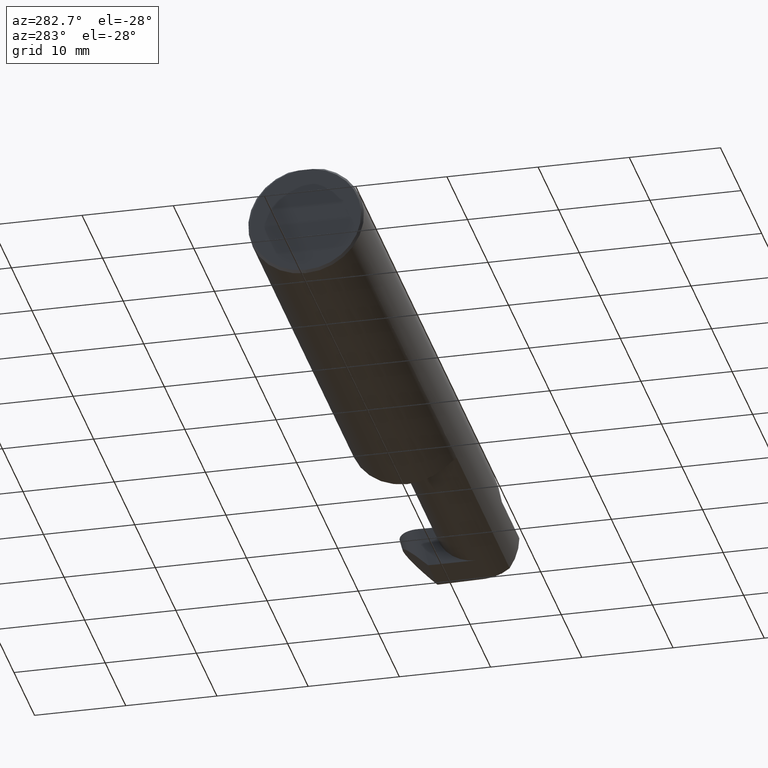
[diagram: clean part render]
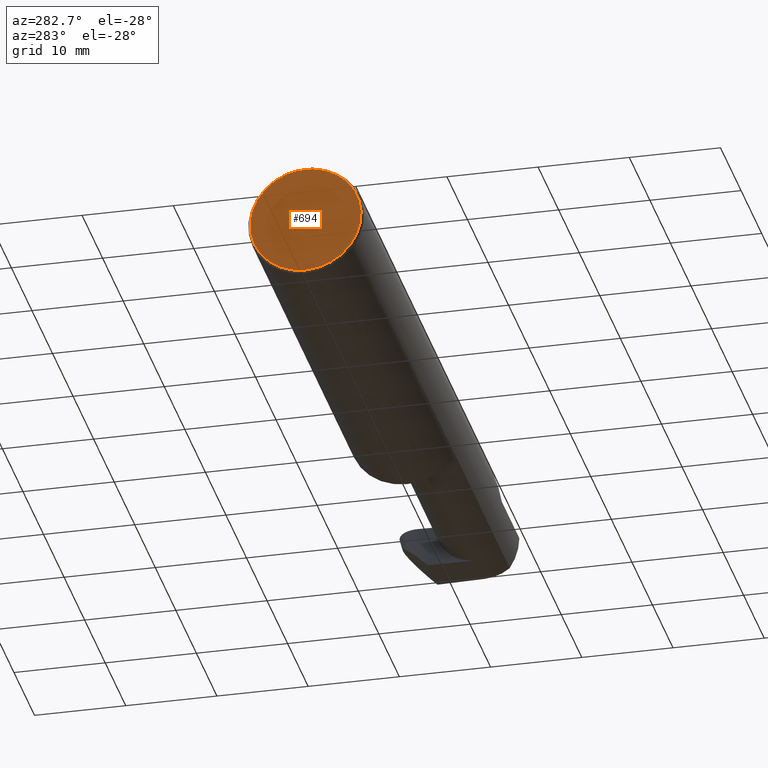
[diagram: same view with one face highlighted and labeled with its STEP entity id]
A machine part, auxiliary view. The second image highlights one B-rep face of the part: STEP entity #694.
In plain terms, the highlighted planar face has unit normal (1, 0, 0).
Its self-contained STEP definition (entity closure, byte-faithful):
#41 = AXIS2_PLACEMENT_3D ( 'NONE', #51, #54, #656 ) ;
#46 = ORIENTED_EDGE ( 'NONE', *, *, #410, .T. ) ;
#51 = CARTESIAN_POINT ( 'NONE',  ( 0.000000000000000000, 0.000000000000000000, 0.000000000000000000 ) ) ;
#54 = DIRECTION ( 'NONE',  ( -1.000000000000000000, -0.000000000000000000, -0.000000000000000000 ) ) ;
#62 = CIRCLE ( 'NONE', #41, 0.2398500000000001742 ) ;
#77 = AXIS2_PLACEMENT_3D ( 'NONE', #175, #648, #554 ) ;
#101 = ORIENTED_EDGE ( 'NONE', *, *, #469, .T. ) ;
#117 = CARTESIAN_POINT ( 'NONE',  ( 0.000000000000000000, 0.2498499999999998500, 0.2378499999999998671 ) ) ;
#171 = PLANE ( 'NONE',  #77 ) ;
#175 = CARTESIAN_POINT ( 'NONE',  ( 0.000000000000000000, 0.000000000000000000, 0.000000000000000000 ) ) ;
#190 = DIRECTION ( 'NONE',  ( -1.000000000000000000, -0.000000000000000000, -0.000000000000000000 ) ) ;
#197 = DIRECTION ( 'NONE',  ( 0.000000000000000000, 0.000000000000000000, -1.000000000000000000 ) ) ;
#232 = CARTESIAN_POINT ( 'NONE',  ( 0.000000000000000000, -0.03090954545120560767, 0.2378499999999998671 ) ) ;
#286 = AXIS2_PLACEMENT_3D ( 'NONE', #578, #190, #197 ) ;
#345 = EDGE_CURVE ( 'NONE', #650, #378, #609, .T. ) ;
#376 = CARTESIAN_POINT ( 'NONE',  ( 0.000000000000000000, 0.000000000000000000, -0.2398500000000001742 ) ) ;
#377 = DIRECTION ( 'NONE',  ( -0.000000000000000000, 1.000000000000000000, -0.000000000000000000 ) ) ;
#378 = VERTEX_POINT ( 'NONE', #429 ) ;
#399 = EDGE_LOOP ( 'NONE', ( #684, #46, #101 ) ) ;
#410 = EDGE_CURVE ( 'NONE', #378, #658, #62, .T. ) ;
#429 = CARTESIAN_POINT ( 'NONE',  ( 0.000000000000000000, 0.03090954545120574992, 0.2378499999999998671 ) ) ;
#469 = EDGE_CURVE ( 'NONE', #658, #650, #479, .T. ) ;
#479 = CIRCLE ( 'NONE', #286, 0.2398500000000001742 ) ;
#554 = DIRECTION ( 'NONE',  ( 0.000000000000000000, 0.000000000000000000, -1.000000000000000000 ) ) ;
#558 = VECTOR ( 'NONE', #377, 39.37007874015748143 ) ;
#578 = CARTESIAN_POINT ( 'NONE',  ( 0.000000000000000000, 0.000000000000000000, 0.000000000000000000 ) ) ;
#609 = LINE ( 'NONE', #117, #558 ) ;
#648 = DIRECTION ( 'NONE',  ( 1.000000000000000000, 0.000000000000000000, 0.000000000000000000 ) ) ;
#650 = VERTEX_POINT ( 'NONE', #232 ) ;
#656 = DIRECTION ( 'NONE',  ( 0.000000000000000000, 0.000000000000000000, -1.000000000000000000 ) ) ;
#658 = VERTEX_POINT ( 'NONE', #376 ) ;
#684 = ORIENTED_EDGE ( 'NONE', *, *, #345, .T. ) ;
#694 = ADVANCED_FACE ( 'NONE', ( #704 ), #171, .F. ) ;
#704 = FACE_OUTER_BOUND ( 'NONE', #399, .T. ) ;